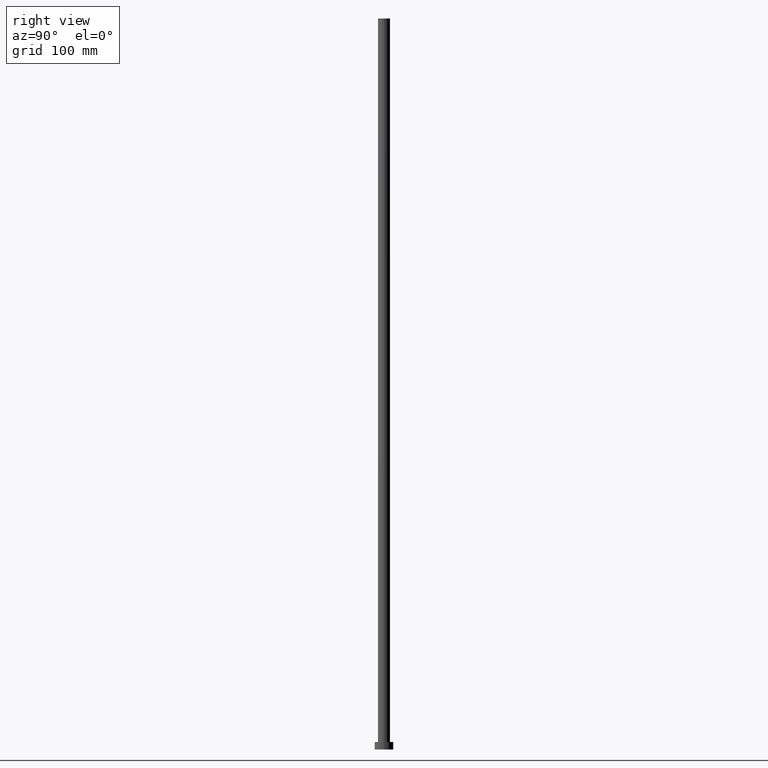
[diagram: clean part render]
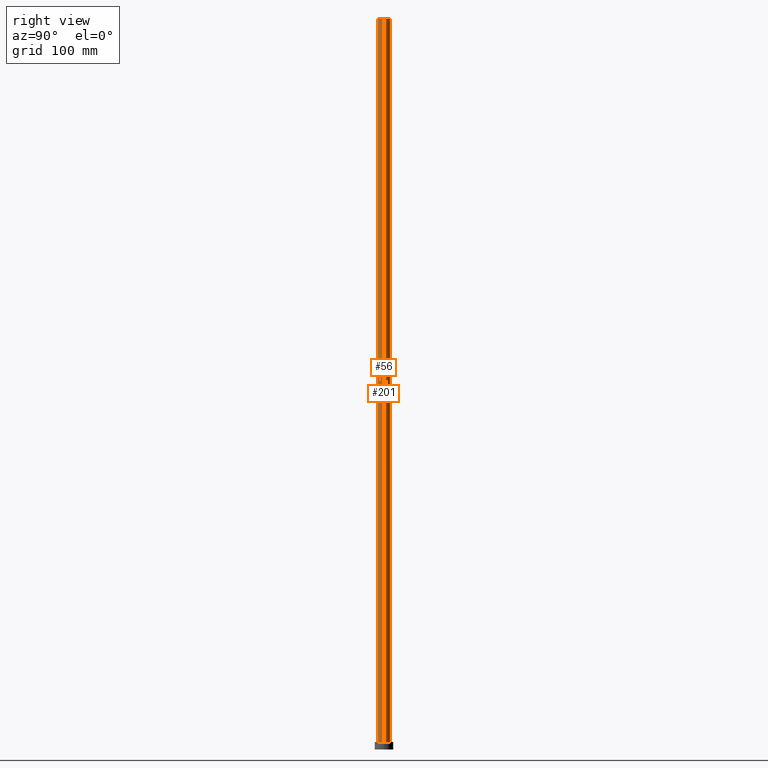
[diagram: same view with one multi-face feature highlighted, each face labeled with its STEP entity id]
A machine part, right view. The highlighted faces form ONE feature: a constant-radius fillet chain: 2 tangent blend faces with common blend radius 5.25 mm. The faces share edges in the B-rep.
Their STEP definitions:
[1] entity #56 (Cylinder):
#1 = CARTESIAN_POINT ( 'NONE',  ( 5.250000000000000888, 6.429395695523604153E-16, 630.0000000000000000 ) ) ;
#11 = DIRECTION ( 'NONE',  ( 1.000000000000000000, 0.000000000000000000, 0.000000000000000000 ) ) ;
#25 = EDGE_CURVE ( 'NONE', #202, #177, #230, .T. ) ;
#29 = CARTESIAN_POINT ( 'NONE',  ( 5.250000000000000888, 6.429395695523604153E-16, 630.0000000000000000 ) ) ;
#30 = LINE ( 'NONE', #29, #215 ) ;
#40 = CARTESIAN_POINT ( 'NONE',  ( 0.000000000000000000, 0.000000000000000000, 630.0000000000000000 ) ) ;
#47 = CARTESIAN_POINT ( 'NONE',  ( 5.250000000000000888, 6.429395695523604153E-16, 6.500000000000000000 ) ) ;
#56 = ADVANCED_FACE ( 'NONE', ( #77 ), #156, .T. ) ;
#66 = CARTESIAN_POINT ( 'NONE',  ( -5.250000000000000888, 0.000000000000000000, 6.500000000000000000 ) ) ;
#76 = DIRECTION ( 'NONE',  ( -0.000000000000000000, -0.000000000000000000, -1.000000000000000000 ) ) ;
#77 = FACE_OUTER_BOUND ( 'NONE', #240, .T. ) ;
#79 = LINE ( 'NONE', #245, #108 ) ;
#92 = VERTEX_POINT ( 'NONE', #1 ) ;
#94 = CARTESIAN_POINT ( 'NONE',  ( 0.000000000000000000, 0.000000000000000000, 6.500000000000000000 ) ) ;
#103 = CARTESIAN_POINT ( 'NONE',  ( 0.000000000000000000, 0.000000000000000000, 630.0000000000000000 ) ) ;
#108 = VECTOR ( 'NONE', #183, 1000.000000000000000 ) ;
#117 = ORIENTED_EDGE ( 'NONE', *, *, #141, .F. ) ;
#120 = ORIENTED_EDGE ( 'NONE', *, *, #25, .T. ) ;
#134 = DIRECTION ( 'NONE',  ( 1.000000000000000000, 0.000000000000000000, 0.000000000000000000 ) ) ;
#140 = AXIS2_PLACEMENT_3D ( 'NONE', #94, #217, #134 ) ;
#141 = EDGE_CURVE ( 'NONE', #92, #177, #30, .T. ) ;
#142 = AXIS2_PLACEMENT_3D ( 'NONE', #103, #185, #11 ) ;
#153 = VERTEX_POINT ( 'NONE', #189 ) ;
#156 = CYLINDRICAL_SURFACE ( 'NONE', #165, 5.250000000000000888 ) ;
#161 = CIRCLE ( 'NONE', #142, 5.250000000000000888 ) ;
#165 = AXIS2_PLACEMENT_3D ( 'NONE', #40, #76, #242 ) ;
#169 = ORIENTED_EDGE ( 'NONE', *, *, #174, .T. ) ;
#174 = EDGE_CURVE ( 'NONE', #153, #202, #79, .T. ) ;
#177 = VERTEX_POINT ( 'NONE', #47 ) ;
#183 = DIRECTION ( 'NONE',  ( -0.000000000000000000, -0.000000000000000000, -1.000000000000000000 ) ) ;
#185 = DIRECTION ( 'NONE',  ( 0.000000000000000000, 0.000000000000000000, 1.000000000000000000 ) ) ;
#189 = CARTESIAN_POINT ( 'NONE',  ( -5.250000000000000888, 0.000000000000000000, 630.0000000000000000 ) ) ;
#202 = VERTEX_POINT ( 'NONE', #66 ) ;
#203 = DIRECTION ( 'NONE',  ( -0.000000000000000000, -0.000000000000000000, -1.000000000000000000 ) ) ;
#212 = EDGE_CURVE ( 'NONE', #153, #92, #161, .T. ) ;
#215 = VECTOR ( 'NONE', #203, 1000.000000000000000 ) ;
#217 = DIRECTION ( 'NONE',  ( 0.000000000000000000, 0.000000000000000000, 1.000000000000000000 ) ) ;
#222 = ORIENTED_EDGE ( 'NONE', *, *, #212, .F. ) ;
#230 = CIRCLE ( 'NONE', #140, 5.250000000000000888 ) ;
#240 = EDGE_LOOP ( 'NONE', ( #117, #222, #169, #120 ) ) ;
#242 = DIRECTION ( 'NONE',  ( -1.000000000000000000, 0.000000000000000000, 0.000000000000000000 ) ) ;
#245 = CARTESIAN_POINT ( 'NONE',  ( -5.250000000000000888, 0.000000000000000000, 630.0000000000000000 ) ) ;
[2] entity #201 (Cylinder):
#1 = CARTESIAN_POINT ( 'NONE',  ( 5.250000000000000888, 6.429395695523604153E-16, 630.0000000000000000 ) ) ;
#3 = EDGE_LOOP ( 'NONE', ( #88, #26, #24, #72 ) ) ;
#4 = EDGE_CURVE ( 'NONE', #92, #153, #171, .T. ) ;
#5 = CARTESIAN_POINT ( 'NONE',  ( 0.000000000000000000, 0.000000000000000000, 630.0000000000000000 ) ) ;
#14 = CYLINDRICAL_SURFACE ( 'NONE', #104, 5.250000000000000888 ) ;
#24 = ORIENTED_EDGE ( 'NONE', *, *, #129, .T. ) ;
#26 = ORIENTED_EDGE ( 'NONE', *, *, #141, .T. ) ;
#29 = CARTESIAN_POINT ( 'NONE',  ( 5.250000000000000888, 6.429395695523604153E-16, 630.0000000000000000 ) ) ;
#30 = LINE ( 'NONE', #29, #215 ) ;
#44 = DIRECTION ( 'NONE',  ( -0.000000000000000000, -0.000000000000000000, -1.000000000000000000 ) ) ;
#47 = CARTESIAN_POINT ( 'NONE',  ( 5.250000000000000888, 6.429395695523604153E-16, 6.500000000000000000 ) ) ;
#66 = CARTESIAN_POINT ( 'NONE',  ( -5.250000000000000888, 0.000000000000000000, 6.500000000000000000 ) ) ;
#67 = AXIS2_PLACEMENT_3D ( 'NONE', #163, #229, #206 ) ;
#72 = ORIENTED_EDGE ( 'NONE', *, *, #174, .F. ) ;
#75 = DIRECTION ( 'NONE',  ( 1.000000000000000000, 0.000000000000000000, 0.000000000000000000 ) ) ;
#79 = LINE ( 'NONE', #245, #108 ) ;
#80 = CARTESIAN_POINT ( 'NONE',  ( 0.000000000000000000, 0.000000000000000000, 630.0000000000000000 ) ) ;
#88 = ORIENTED_EDGE ( 'NONE', *, *, #4, .F. ) ;
#92 = VERTEX_POINT ( 'NONE', #1 ) ;
#104 = AXIS2_PLACEMENT_3D ( 'NONE', #80, #44, #124 ) ;
#105 = FACE_OUTER_BOUND ( 'NONE', #3, .T. ) ;
#108 = VECTOR ( 'NONE', #183, 1000.000000000000000 ) ;
#124 = DIRECTION ( 'NONE',  ( -1.000000000000000000, 0.000000000000000000, 0.000000000000000000 ) ) ;
#126 = CIRCLE ( 'NONE', #67, 5.250000000000000888 ) ;
#129 = EDGE_CURVE ( 'NONE', #177, #202, #126, .T. ) ;
#141 = EDGE_CURVE ( 'NONE', #92, #177, #30, .T. ) ;
#150 = DIRECTION ( 'NONE',  ( 0.000000000000000000, 0.000000000000000000, 1.000000000000000000 ) ) ;
#153 = VERTEX_POINT ( 'NONE', #189 ) ;
#163 = CARTESIAN_POINT ( 'NONE',  ( 0.000000000000000000, 0.000000000000000000, 6.500000000000000000 ) ) ;
#171 = CIRCLE ( 'NONE', #224, 5.250000000000000888 ) ;
#174 = EDGE_CURVE ( 'NONE', #153, #202, #79, .T. ) ;
#177 = VERTEX_POINT ( 'NONE', #47 ) ;
#183 = DIRECTION ( 'NONE',  ( -0.000000000000000000, -0.000000000000000000, -1.000000000000000000 ) ) ;
#189 = CARTESIAN_POINT ( 'NONE',  ( -5.250000000000000888, 0.000000000000000000, 630.0000000000000000 ) ) ;
#201 = ADVANCED_FACE ( 'NONE', ( #105 ), #14, .T. ) ;
#202 = VERTEX_POINT ( 'NONE', #66 ) ;
#203 = DIRECTION ( 'NONE',  ( -0.000000000000000000, -0.000000000000000000, -1.000000000000000000 ) ) ;
#206 = DIRECTION ( 'NONE',  ( 1.000000000000000000, 0.000000000000000000, 0.000000000000000000 ) ) ;
#215 = VECTOR ( 'NONE', #203, 1000.000000000000000 ) ;
#224 = AXIS2_PLACEMENT_3D ( 'NONE', #5, #150, #75 ) ;
#229 = DIRECTION ( 'NONE',  ( 0.000000000000000000, 0.000000000000000000, 1.000000000000000000 ) ) ;
#245 = CARTESIAN_POINT ( 'NONE',  ( -5.250000000000000888, 0.000000000000000000, 630.0000000000000000 ) ) ;